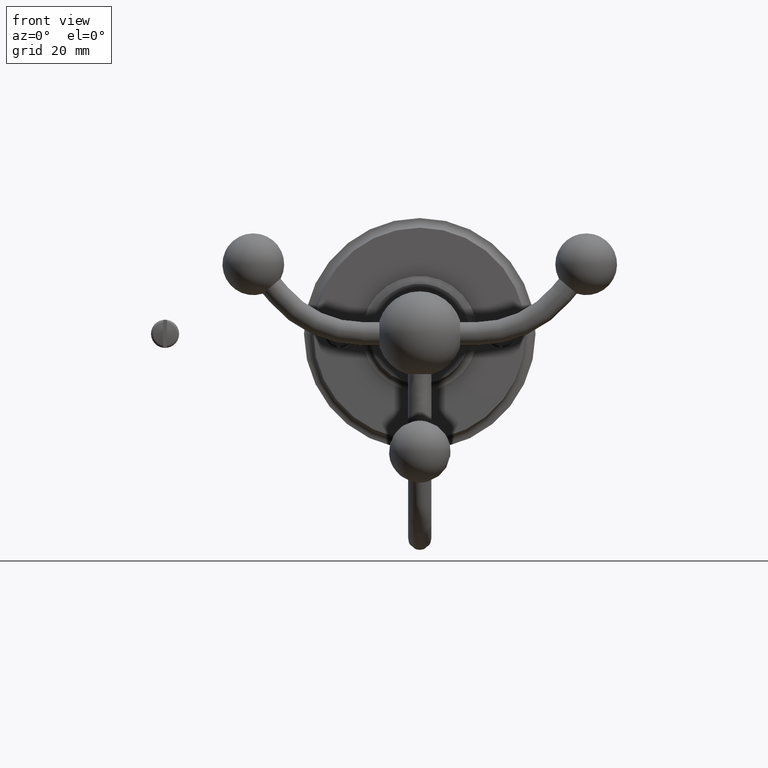
[diagram: clean part render]
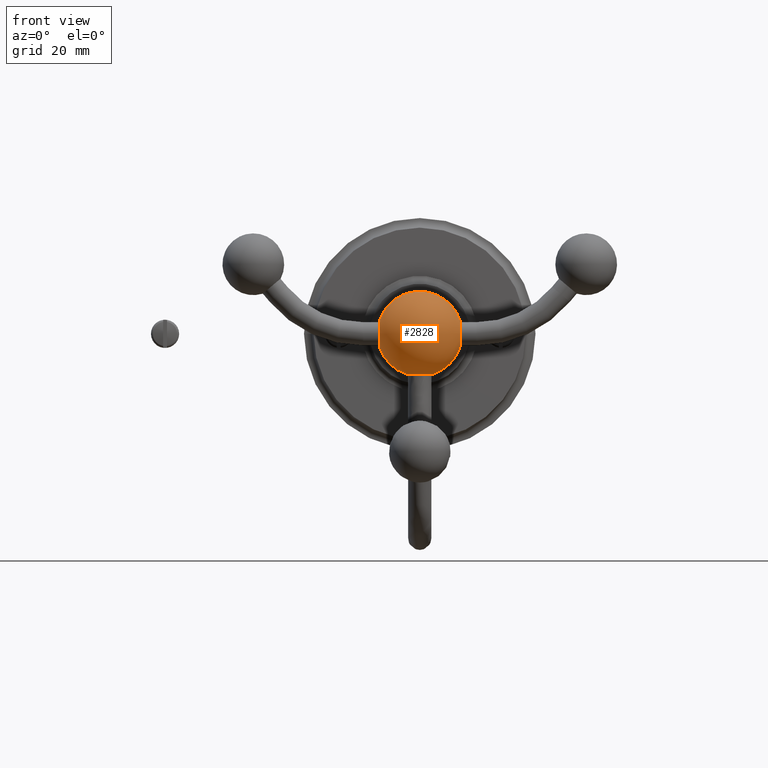
[diagram: same view with one face highlighted and labeled with its STEP entity id]
A machine part, front view. The second image highlights one B-rep face of the part: STEP entity #2828.
In plain terms, the highlighted spherical surface has radius 11 mm.
Its self-contained STEP definition (entity closure, byte-faithful):
#2044=CARTESIAN_POINT('',(0.E0,-2.65E1,1.799180333369E-12));
#2045=DIRECTION('',(1.994742009362E-14,1.E0,0.E0));
#2046=DIRECTION('',(9.497254017449E-1,-1.905546427720E-14,-3.130841121497E-1));
#2047=AXIS2_PLACEMENT_3D('',#2044,#2045,#2046);
#2059=CARTESIAN_POINT('',(0.E0,-2.65E1,1.799180333369E-12));
#2060=DIRECTION('',(2.063009207746E-14,1.E0,0.E0));
#2061=DIRECTION('',(-8.726646248912E-5,0.E0,9.999999961923E-1));
#2062=AXIS2_PLACEMENT_3D('',#2059,#2060,#2061);
#2079=CARTESIAN_POINT('',(0.E0,-2.65E1,-1.044697856541E1));
#2080=DIRECTION('',(0.E0,0.E0,1.E0));
#2081=DIRECTION('',(-1.E0,1.728456185853E-9,0.E0));
#2082=AXIS2_PLACEMENT_3D('',#2079,#2080,#2081);
#2093=CARTESIAN_POINT('',(0.E0,-2.65E1,1.801225835177E-12));
#2094=DIRECTION('',(-2.732067524641E-14,-1.E0,0.E0));
#2095=DIRECTION('',(-9.497254017449E-1,2.583791766400E-14,-3.130841121497E-1));
#2096=AXIS2_PLACEMENT_3D('',#2093,#2094,#2095);
#2098=CARTESIAN_POINT('',(0.E0,-2.65E1,1.801225835177E-12));
#2099=DIRECTION('',(-2.626731689278E-14,-1.E0,0.E0));
#2100=DIRECTION('',(-8.726646248924E-5,0.E0,9.999999961923E-1));
#2101=AXIS2_PLACEMENT_3D('',#2098,#2099,#2100);
#2103=CARTESIAN_POINT('',(-1.044698030778E1,-2.65E1,3.336775300511E-13));
#2104=DIRECTION('',(1.E0,0.E0,0.E0));
#2105=DIRECTION('',(0.E0,7.007869877700E-9,1.E0));
#2106=AXIS2_PLACEMENT_3D('',#2103,#2104,#2105);
#2344=CARTESIAN_POINT('',(1.044697877089E1,-2.65E1,3.684830218731E-13));
#2345=DIRECTION('',(-1.E0,0.E0,0.E0));
#2346=DIRECTION('',(0.E0,7.555167296067E-9,-1.E0));
#2347=AXIS2_PLACEMENT_3D('',#2344,#2345,#2346);
#2687=CARTESIAN_POINT('',(3.444241148083E0,-2.650000000010E1,
-1.044687527033E1));
#2689=VERTEX_POINT('',#2687);
#2691=CARTESIAN_POINT('',(-3.443605836196E0,-2.650000000576E1,
-1.044708470555E1));
#2692=VERTEX_POINT('',#2691);
#2699=CARTESIAN_POINT('',(1.044697941919E1,-2.65E1,-3.443925233645E0));
#2700=VERTEX_POINT('',#2699);
#2701=CARTESIAN_POINT('',(-1.044697941919E1,-2.65E1,-3.443925233645E0));
#2702=VERTEX_POINT('',#2701);
#2705=CARTESIAN_POINT('',(-1.044697838133E1,-2.650000002602E1,
3.443923440420E0));
#2706=VERTEX_POINT('',#2705);
#2713=CARTESIAN_POINT('',(1.044697863175E1,-2.650000000208E1,3.443927007854E0));
#2715=VERTEX_POINT('',#2713);
#2723=CARTESIAN_POINT('',(-9.599310873789E-4,-2.65E1,1.099999995812E1));
#2724=VERTEX_POINT('',#2723);
#2812=CARTESIAN_POINT('',(0.E0,-2.65E1,1.801225835177E-12));
#2813=DIRECTION('',(-8.726646248918E-5,0.E0,9.999999961923E-1));
#2814=DIRECTION('',(-9.999999961923E-1,2.680683957640E-14,-8.726646248918E-5));
#2815=AXIS2_PLACEMENT_3D('',#2812,#2813,#2814);
#2816=SPHERICAL_SURFACE('',#2815,1.1E1);
#2817=ORIENTED_EDGE('',*,*,#2798,.F.);
#2818=ORIENTED_EDGE('',*,*,#2782,.F.);
#2820=ORIENTED_EDGE('',*,*,#2819,.F.);
#2821=ORIENTED_EDGE('',*,*,#2776,.F.);
#2822=ORIENTED_EDGE('',*,*,#2774,.T.);
#2824=ORIENTED_EDGE('',*,*,#2823,.F.);
#2825=ORIENTED_EDGE('',*,*,#2768,.T.);
#2826=EDGE_LOOP('',(#2817,#2818,#2820,#2821,#2822,#2824,#2825));
#2827=FACE_OUTER_BOUND('',#2826,.F.);
#2828=ADVANCED_FACE('',(#2827),#2816,.T.);
#2048=CIRCLE('',#2047,1.1E1);
#2063=CIRCLE('',#2062,1.1E1);
#2083=CIRCLE('',#2082,3.443927823547E0);
#2097=CIRCLE('',#2096,1.1E1);
#2102=CIRCLE('',#2101,1.1E1);
#2107=CIRCLE('',#2106,3.443922538167E0);
#2348=CIRCLE('',#2347,3.443927200230E0);
#2768=EDGE_CURVE('',#2700,#2689,#2048,.T.);
#2774=EDGE_CURVE('',#2724,#2715,#2063,.T.);
#2776=EDGE_CURVE('',#2724,#2706,#2102,.T.);
#2782=EDGE_CURVE('',#2702,#2692,#2097,.T.);
#2798=EDGE_CURVE('',#2692,#2689,#2083,.T.);
#2819=EDGE_CURVE('',#2706,#2702,#2107,.T.);
#2823=EDGE_CURVE('',#2700,#2715,#2348,.T.);